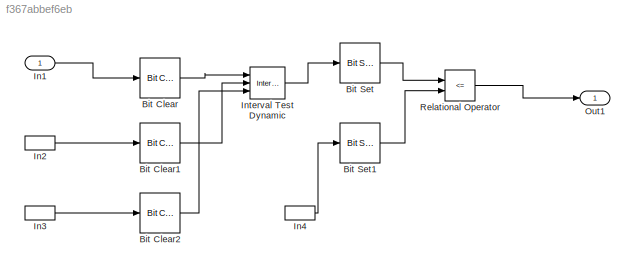
MODEL slx_f367abbef6eb
KIND model
CONFIG AbsTol = auto
CONFIG EnableMultiTasking = off
CONFIG FixedStep = auto
CONFIG MaxStep = auto
CONFIG MinStep = auto
CONFIG RelTol = 1e-3
CONFIG SampleTimeConstraint = Unconstrained
CONFIG Solver = VariableStepAuto
CONFIG SolverName = VariableStepAuto
CONFIG StartTime = 0.0
CONFIG StopTime = 10.0
BLOCK [Reference] Bit Clear  REF=simulink/Logic and Bit
Operations/Bit Clear
  Ports = [1, 1]
  SourceBlock = simulink/Logic and Bit\nOperations/Bit Clear
  SourceType = Bit Clear
BLOCK [Reference] Bit Clear1  REF=simulink/Logic and Bit
Operations/Bit Clear
  Ports = [1, 1]
  SourceBlock = simulink/Logic and Bit\nOperations/Bit Clear
  SourceType = Bit Clear
BLOCK [Reference] Bit Clear2  REF=simulink/Logic and Bit
Operations/Bit Clear
  Ports = [1, 1]
  SourceBlock = simulink/Logic and Bit\nOperations/Bit Clear
  SourceType = Bit Clear
BLOCK [Reference] Bit Set  REF=simulink/Logic and Bit
Operations/Bit Set
  Ports = [1, 1]
  SourceBlock = simulink/Logic and Bit\nOperations/Bit Set
  SourceType = Bit Set
BLOCK [Reference] Bit Set1  REF=simulink/Logic and Bit
Operations/Bit Set
  Ports = [1, 1]
  SourceBlock = simulink/Logic and Bit\nOperations/Bit Set
  SourceType = Bit Set
BLOCK [Inport] In1
  IconDisplay = Port number
BLOCK [InportShadow] In2
  IconDisplay = Port number
BLOCK [InportShadow] In3
  IconDisplay = Port number
BLOCK [InportShadow] In4
  IconDisplay = Port number
BLOCK [Reference] Interval Test Dynamic  REF=simulink/Logic and Bit
Operations/Interval Test
Dynamic
  Ports = [3, 1]
  SourceBlock = simulink/Logic and Bit\nOperations/Interval Test\nDynamic
  SourceType = Interval Test Dynamic
BLOCK [Outport] Out1
  IconDisplay = Port number
BLOCK [RelationalOperator] Relational Operator
  InputSameDT = off
  Operator = <=
  OutDataTypeStr = boolean
  Ports = [2, 1]
  RndMeth = Simplest
LINE Bit Clear1:1 -> Interval Test Dynamic:2
LINE Bit Clear2:1 -> Interval Test Dynamic:3
LINE Bit Clear:1 -> Interval Test Dynamic:1
LINE Bit Set1:1 -> Relational Operator:2
LINE Bit Set:1 -> Relational Operator:1
LINE In1:1 -> Bit Clear:1
LINE In2:1 -> Bit Clear1:1
LINE In3:1 -> Bit Clear2:1
LINE In4:1 -> Bit Set1:1
LINE Interval Test Dynamic:1 -> Bit Set:1
LINE Relational Operator:1 -> Out1:1
